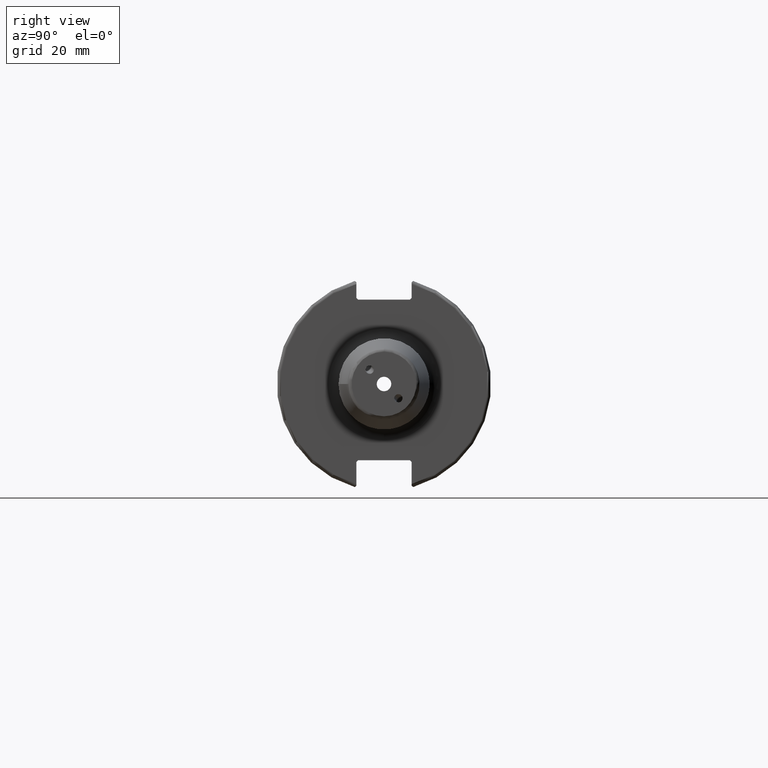
[diagram: clean part render]
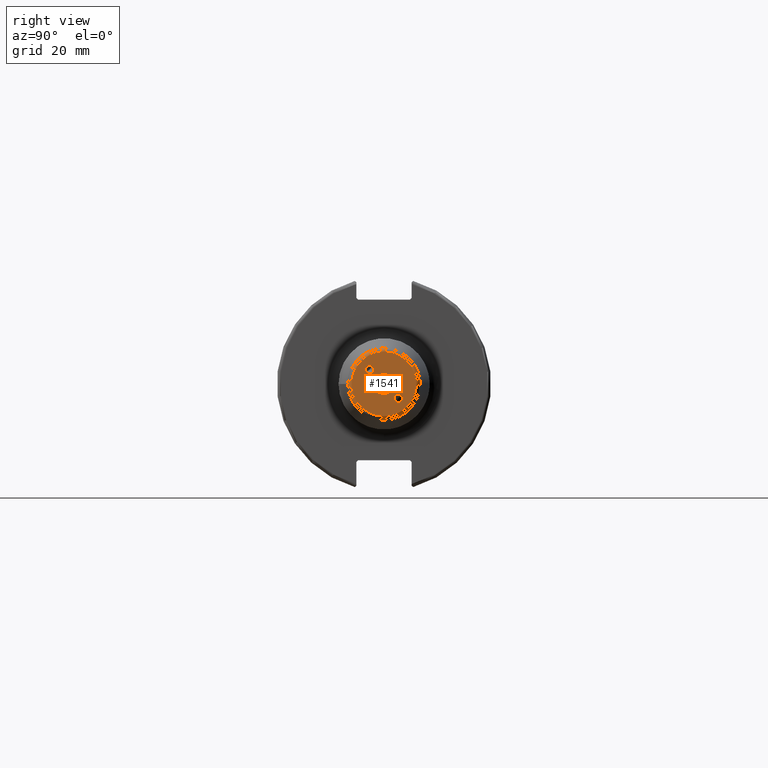
[diagram: same view with one face highlighted and labeled with its STEP entity id]
A machine part, right view. The second image highlights one B-rep face of the part: STEP entity #1541.
In plain terms, the highlighted planar face has unit normal (1, 0, 0).
Its self-contained STEP definition (entity closure, byte-faithful):
#61=FACE_BOUND('',#272,.T.);
#62=FACE_BOUND('',#273,.T.);
#63=FACE_BOUND('',#274,.T.);
#79=PLANE('',#1663);
#124=ELLIPSE('',#1653,1.2325023136908,1.2295);
#125=ELLIPSE('',#1657,1.2325023136908,1.2295);
#180=FACE_OUTER_BOUND('',#271,.T.);
#271=EDGE_LOOP('',(#1062));
#272=EDGE_LOOP('',(#1063));
#273=EDGE_LOOP('',(#1064));
#274=EDGE_LOOP('',(#1065));
#573=CIRCLE('',#1659,9.57560950834179);
#577=CIRCLE('',#1664,3.175);
#648=VERTEX_POINT('',#2315);
#651=VERTEX_POINT('',#2324);
#652=VERTEX_POINT('',#2328);
#655=VERTEX_POINT('',#2336);
#806=EDGE_CURVE('',#648,#648,#124,.T.);
#810=EDGE_CURVE('',#651,#651,#125,.T.);
#812=EDGE_CURVE('',#652,#652,#573,.T.);
#816=EDGE_CURVE('',#655,#655,#577,.T.);
#1062=ORIENTED_EDGE('',*,*,#812,.F.);
#1063=ORIENTED_EDGE('',*,*,#806,.T.);
#1064=ORIENTED_EDGE('',*,*,#810,.T.);
#1065=ORIENTED_EDGE('',*,*,#816,.F.);
#1541=ADVANCED_FACE('',(#180,#61,#62,#63),#79,.T.);
#1653=AXIS2_PLACEMENT_3D('',#2316,#1845,#1846);
#1657=AXIS2_PLACEMENT_3D('',#2325,#1855,#1856);
#1659=AXIS2_PLACEMENT_3D('',#2329,#1860,#1861);
#1663=AXIS2_PLACEMENT_3D('',#2335,#1868,#1869);
#1664=AXIS2_PLACEMENT_3D('',#2337,#1870,#1871);
#1845=DIRECTION('center_axis',(-1.,0.,0.));
#1846=DIRECTION('ref_axis',(0.,-0.707106781186537,0.707106781186558));
#1855=DIRECTION('center_axis',(-1.,0.,0.));
#1856=DIRECTION('ref_axis',(0.,0.707106781186537,-0.707106781186558));
#1860=DIRECTION('center_axis',(-1.,0.,0.));
#1861=DIRECTION('ref_axis',(0.,-1.,1.83697019872103E-16));
#1868=DIRECTION('center_axis',(1.,0.,0.));
#1869=DIRECTION('ref_axis',(0.,0.,-1.));
#1870=DIRECTION('center_axis',(1.,0.,0.));
#1871=DIRECTION('ref_axis',(0.,0.,-1.));
#2315=CARTESIAN_POINT('',(130.,-3.01163861497375,4.23963837566083));
#2316=CARTESIAN_POINT('Origin',(130.,-4.24264068711928,4.24264068711928));
#2324=CARTESIAN_POINT('',(130.,3.01163861497375,-4.23963837566082));
#2325=CARTESIAN_POINT('Origin',(130.,4.24264068711928,-4.24264068711928));
#2328=CARTESIAN_POINT('',(130.,-1.17267395342757E-15,9.57560950834179));
#2329=CARTESIAN_POINT('Origin',(130.,0.,0.));
#2335=CARTESIAN_POINT('Origin',(130.,3.175,0.));
#2336=CARTESIAN_POINT('',(130.,-3.175,-3.88825358729285E-16));
#2337=CARTESIAN_POINT('Origin',(130.,0.,0.));